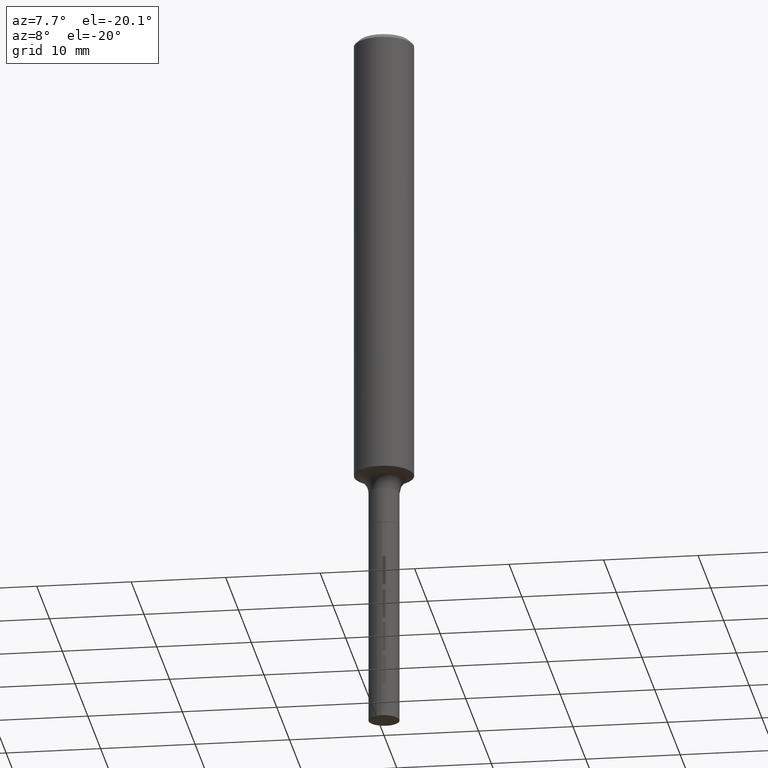
[diagram: clean part render]
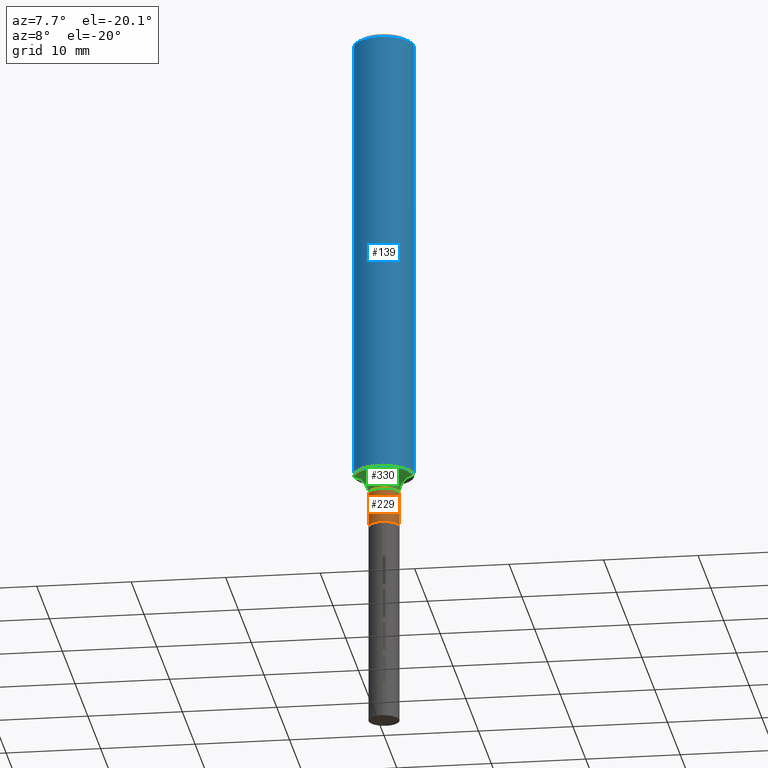
[diagram: same view with three faces highlighted in distinct colors, each labeled with its STEP entity id]
A machine part, auxiliary view with three faces highlighted in distinct colors.
Their STEP definitions:

[orange] entity #229 — the highlighted cylindrical surface (edge-blend (fillet) strip) has radius 1.632 mm, axis along (-0, 0, 1).
#24 = DIRECTION ( 'NONE',  ( -2.445468806185136597E-29, 3.491481338843145583E-15, 1.000000000000000000 ) ) ;
#29 = VERTEX_POINT ( 'NONE', #79 ) ;
#34 = ORIENTED_EDGE ( 'NONE', *, *, #176, .T. ) ;
#51 = CARTESIAN_POINT ( 'NONE',  ( 0.000000000000000000, 0.000000000000000000, 0.000000000000000000 ) ) ;
#73 = CARTESIAN_POINT ( 'NONE',  ( -0.06425000000000001543, -6.716200980726552309E-15, -2.128000000000000558 ) ) ;
#79 = CARTESIAN_POINT ( 'NONE',  ( 0.06424999999999998768, -7.364232439887960955E-15, -1.980699999999999905 ) ) ;
#101 = CYLINDRICAL_SURFACE ( 'NONE', #142, 0.06425000000000000155 ) ;
#120 = CIRCLE ( 'NONE', #152, 0.06424999999999998768 ) ;
#142 = AXIS2_PLACEMENT_3D ( 'NONE', #51, #203, #394 ) ;
#144 = EDGE_CURVE ( 'NONE', #464, #29, #120, .T. ) ;
#152 = AXIS2_PLACEMENT_3D ( 'NONE', #366, #440, #405 ) ;
#155 = LINE ( 'NONE', #306, #277 ) ;
#164 = FACE_OUTER_BOUND ( 'NONE', #243, .T. ) ;
#176 = EDGE_CURVE ( 'NONE', #223, #29, #293, .T. ) ;
#195 = DIRECTION ( 'NONE',  ( -2.445468806185136877E-29, 3.491481338843145188E-15, 1.000000000000000000 ) ) ;
#203 = DIRECTION ( 'NONE',  ( -2.445468806185136597E-29, 3.491481338843145583E-15, 1.000000000000000000 ) ) ;
#223 = VERTEX_POINT ( 'NONE', #444 ) ;
#224 = DIRECTION ( 'NONE',  ( 1.000000000000000000, -6.982962677686269077E-15, 0.000000000000000000 ) ) ;
#229 = ADVANCED_FACE ( 'NONE', ( #164 ), #101, .T. ) ;
#243 = EDGE_LOOP ( 'NONE', ( #284, #384, #34, #455 ) ) ;
#277 = VECTOR ( 'NONE', #195, 39.37007874015748143 ) ;
#282 = CARTESIAN_POINT ( 'NONE',  ( -0.06424999999999998768, -6.716200980726552309E-15, -1.980699999999999905 ) ) ;
#284 = ORIENTED_EDGE ( 'NONE', *, *, #449, .F. ) ;
#293 = LINE ( 'NONE', #438, #341 ) ;
#306 = CARTESIAN_POINT ( 'NONE',  ( -0.06425000000000000155, 4.565237077258643805E-16, -3.160415795488776479E-30 ) ) ;
#316 = AXIS2_PLACEMENT_3D ( 'NONE', #380, #24, #224 ) ;
#322 = EDGE_CURVE ( 'NONE', #466, #223, #411, .T. ) ;
#341 = VECTOR ( 'NONE', #441, 39.37007874015748143 ) ;
#366 = CARTESIAN_POINT ( 'NONE',  ( 4.843740064410899913E-29, -6.915577087846618761E-15, -1.980699999999999905 ) ) ;
#380 = CARTESIAN_POINT ( 'NONE',  ( 5.203957619561972077E-29, -7.429872289058215800E-15, -2.128000000000000558 ) ) ;
#384 = ORIENTED_EDGE ( 'NONE', *, *, #322, .T. ) ;
#394 = DIRECTION ( 'NONE',  ( 1.000000000000000000, -6.982962677686265922E-15, 4.876176775795935232E-29 ) ) ;
#405 = DIRECTION ( 'NONE',  ( 1.000000000000000000, -6.982962677686270655E-15, 0.000000000000000000 ) ) ;
#411 = CIRCLE ( 'NONE', #316, 0.06425000000000000155 ) ;
#438 = CARTESIAN_POINT ( 'NONE',  ( 0.06425000000000000155, -4.486553520413425888E-16, 3.132943578448888481E-30 ) ) ;
#440 = DIRECTION ( 'NONE',  ( -2.445468806185136597E-29, 3.491481338843145583E-15, 1.000000000000000000 ) ) ;
#441 = DIRECTION ( 'NONE',  ( -2.445468806185136877E-29, 3.491481338843145188E-15, 1.000000000000000000 ) ) ;
#444 = CARTESIAN_POINT ( 'NONE',  ( 0.06425000000000000155, -7.878527641099558784E-15, -2.128000000000000558 ) ) ;
#449 = EDGE_CURVE ( 'NONE', #466, #464, #155, .T. ) ;
#455 = ORIENTED_EDGE ( 'NONE', *, *, #144, .F. ) ;
#464 = VERTEX_POINT ( 'NONE', #282 ) ;
#466 = VERTEX_POINT ( 'NONE', #73 ) ;

[blue] entity #139 — the highlighted cylindrical surface (edge-blend (fillet) strip) has radius 3.175 mm, axis along (-0, 0, 1).
#6 = DIRECTION ( 'NONE',  ( -2.445468806185136597E-29, 3.491481338843145583E-15, 1.000000000000000000 ) ) ;
#9 = VERTEX_POINT ( 'NONE', #422 ) ;
#14 = AXIS2_PLACEMENT_3D ( 'NONE', #315, #6, #292 ) ;
#28 = CARTESIAN_POINT ( 'NONE',  ( 0.1250000000000000000, -9.383356098140928781E-16, -0.01875000000000014155 ) ) ;
#33 = CARTESIAN_POINT ( 'NONE',  ( 4.657716586061579389E-29, -6.649984862093984679E-15, -1.904631363230303576 ) ) ;
#62 = LINE ( 'NONE', #109, #429 ) ;
#63 = ORIENTED_EDGE ( 'NONE', *, *, #264, .T. ) ;
#64 = VECTOR ( 'NONE', #400, 39.37007874015748143 ) ;
#82 = EDGE_CURVE ( 'NONE', #9, #379, #246, .T. ) ;
#86 = VERTEX_POINT ( 'NONE', #251 ) ;
#89 = VERTEX_POINT ( 'NONE', #125 ) ;
#100 = CIRCLE ( 'NONE', #381, 0.1250000000000002498 ) ;
#109 = CARTESIAN_POINT ( 'NONE',  ( 0.1250000000000001110, -8.728703347107842263E-16, 6.095220969744926047E-30 ) ) ;
#125 = CARTESIAN_POINT ( 'NONE',  ( 0.1250000000000003331, -7.522855196804770385E-15, -1.904631363230303576 ) ) ;
#139 = ADVANCED_FACE ( 'NONE', ( #205 ), #408, .T. ) ;
#167 = DIRECTION ( 'NONE',  ( 1.000000000000000000, -6.982962677686267499E-15, 4.876176775795936353E-29 ) ) ;
#205 = FACE_OUTER_BOUND ( 'NONE', #313, .T. ) ;
#211 = EDGE_CURVE ( 'NONE', #86, #9, #321, .T. ) ;
#246 = CIRCLE ( 'NONE', #14, 0.1250000000000000000 ) ;
#249 = DIRECTION ( 'NONE',  ( -2.445468806185136597E-29, 3.491481338843145583E-15, 1.000000000000000000 ) ) ;
#251 = CARTESIAN_POINT ( 'NONE',  ( -0.1250000000000003331, -5.761806442393857869E-15, -1.904631363230303576 ) ) ;
#254 = DIRECTION ( 'NONE',  ( -2.445468806185136597E-29, 3.491481338843145583E-15, 1.000000000000000000 ) ) ;
#264 = EDGE_CURVE ( 'NONE', #89, #379, #62, .T. ) ;
#280 = AXIS2_PLACEMENT_3D ( 'NONE', #473, #249, #167 ) ;
#292 = DIRECTION ( 'NONE',  ( 1.000000000000000000, -6.982962677686266711E-15, 0.000000000000000000 ) ) ;
#294 = CARTESIAN_POINT ( 'NONE',  ( -0.1250000000000001110, 8.881784197001260212E-16, -6.148668862818637832E-30 ) ) ;
#313 = EDGE_LOOP ( 'NONE', ( #457, #390, #63, #448 ) ) ;
#315 = CARTESIAN_POINT ( 'NONE',  ( 4.585254011597165626E-31, -6.546527510330947764E-17, -0.01875000000000014155 ) ) ;
#321 = LINE ( 'NONE', #294, #64 ) ;
#323 = EDGE_CURVE ( 'NONE', #86, #89, #100, .T. ) ;
#373 = DIRECTION ( 'NONE',  ( -2.445468806185136877E-29, 3.491481338843145188E-15, 1.000000000000000000 ) ) ;
#379 = VERTEX_POINT ( 'NONE', #28 ) ;
#381 = AXIS2_PLACEMENT_3D ( 'NONE', #33, #254, #410 ) ;
#390 = ORIENTED_EDGE ( 'NONE', *, *, #323, .T. ) ;
#400 = DIRECTION ( 'NONE',  ( -2.445468806185136877E-29, 3.491481338843145188E-15, 1.000000000000000000 ) ) ;
#408 = CYLINDRICAL_SURFACE ( 'NONE', #280, 0.1250000000000001110 ) ;
#410 = DIRECTION ( 'NONE',  ( 1.000000000000000000, -6.982962677686264344E-15, 0.000000000000000000 ) ) ;
#422 = CARTESIAN_POINT ( 'NONE',  ( -0.1250000000000000000, -2.469546648898519313E-15, -0.01875000000000014155 ) ) ;
#429 = VECTOR ( 'NONE', #373, 39.37007874015748143 ) ;
#448 = ORIENTED_EDGE ( 'NONE', *, *, #82, .F. ) ;
#457 = ORIENTED_EDGE ( 'NONE', *, *, #211, .F. ) ;
#473 = CARTESIAN_POINT ( 'NONE',  ( 0.000000000000000000, 0.000000000000000000, 0.000000000000000000 ) ) ;

[green] entity #330 — the highlighted toroidal blend (fillet) surface has major radius 3.6131 mm and minor (blend) radius 1.9812 mm.
#13 = ORIENTED_EDGE ( 'NONE', *, *, #193, .F. ) ;
#18 = DIRECTION ( 'NONE',  ( -1.000000000000000000, 7.105427357601003436E-15, 0.000000000000000000 ) ) ;
#19 = DIRECTION ( 'NONE',  ( 1.000000000000000000, -6.982962677686263555E-15, 0.000000000000000000 ) ) ;
#23 = CARTESIAN_POINT ( 'NONE',  ( 0.1422499999999999876, -7.908903528747489001E-15, -1.980699999999999905 ) ) ;
#25 = AXIS2_PLACEMENT_3D ( 'NONE', #340, #295, #103 ) ;
#29 = VERTEX_POINT ( 'NONE', #79 ) ;
#33 = CARTESIAN_POINT ( 'NONE',  ( 4.657716586061579389E-29, -6.649984862093984679E-15, -1.904631363230303576 ) ) ;
#48 = ORIENTED_EDGE ( 'NONE', *, *, #323, .F. ) ;
#59 = AXIS2_PLACEMENT_3D ( 'NONE', #23, #403, #19 ) ;
#79 = CARTESIAN_POINT ( 'NONE',  ( 0.06424999999999998768, -7.364232439887960955E-15, -1.980699999999999905 ) ) ;
#86 = VERTEX_POINT ( 'NONE', #251 ) ;
#89 = VERTEX_POINT ( 'NONE', #125 ) ;
#92 = CIRCLE ( 'NONE', #239, 0.07800000000000008316 ) ;
#96 = EDGE_CURVE ( 'NONE', #86, #464, #92, .T. ) ;
#98 = DIRECTION ( 'NONE',  ( 7.105427357601001859E-15, 1.000000000000000000, -3.491481338843145583E-15 ) ) ;
#100 = CIRCLE ( 'NONE', #381, 0.1250000000000002498 ) ;
#103 = DIRECTION ( 'NONE',  ( 1.000000000000000000, -6.982962677686268288E-15, 4.883557194083113462E-29 ) ) ;
#120 = CIRCLE ( 'NONE', #152, 0.06424999999999998768 ) ;
#125 = CARTESIAN_POINT ( 'NONE',  ( 0.1250000000000003331, -7.522855196804770385E-15, -1.904631363230303576 ) ) ;
#144 = EDGE_CURVE ( 'NONE', #464, #29, #120, .T. ) ;
#152 = AXIS2_PLACEMENT_3D ( 'NONE', #366, #440, #405 ) ;
#193 = EDGE_CURVE ( 'NONE', #89, #29, #406, .T. ) ;
#217 = ORIENTED_EDGE ( 'NONE', *, *, #96, .T. ) ;
#239 = AXIS2_PLACEMENT_3D ( 'NONE', #327, #98, #18 ) ;
#251 = CARTESIAN_POINT ( 'NONE',  ( -0.1250000000000003331, -5.761806442393857869E-15, -1.904631363230303576 ) ) ;
#254 = DIRECTION ( 'NONE',  ( -2.445468806185136597E-29, 3.491481338843145583E-15, 1.000000000000000000 ) ) ;
#282 = CARTESIAN_POINT ( 'NONE',  ( -0.06424999999999998768, -6.716200980726552309E-15, -1.980699999999999905 ) ) ;
#295 = DIRECTION ( 'NONE',  ( -2.445468806185136597E-29, 3.491481338843145583E-15, 1.000000000000000000 ) ) ;
#323 = EDGE_CURVE ( 'NONE', #86, #89, #100, .T. ) ;
#327 = CARTESIAN_POINT ( 'NONE',  ( -0.1422499999999999876, -5.904830046227876335E-15, -1.980699999999999905 ) ) ;
#330 = ADVANCED_FACE ( 'NONE', ( #452 ), #395, .F. ) ;
#340 = CARTESIAN_POINT ( 'NONE',  ( 4.843740064410899913E-29, -6.915577087846618761E-15, -1.980699999999999905 ) ) ;
#366 = CARTESIAN_POINT ( 'NONE',  ( 4.843740064410899913E-29, -6.915577087846618761E-15, -1.980699999999999905 ) ) ;
#374 = EDGE_LOOP ( 'NONE', ( #48, #217, #453, #13 ) ) ;
#381 = AXIS2_PLACEMENT_3D ( 'NONE', #33, #254, #410 ) ;
#395 = TOROIDAL_SURFACE ( 'NONE', #25, 0.1422499999999999876, 0.07800000000000006928 ) ;
#403 = DIRECTION ( 'NONE',  ( -6.982962677686266711E-15, -1.000000000000000000, 3.491481338843145583E-15 ) ) ;
#405 = DIRECTION ( 'NONE',  ( 1.000000000000000000, -6.982962677686270655E-15, 0.000000000000000000 ) ) ;
#406 = CIRCLE ( 'NONE', #59, 0.07800000000000008316 ) ;
#410 = DIRECTION ( 'NONE',  ( 1.000000000000000000, -6.982962677686264344E-15, 0.000000000000000000 ) ) ;
#440 = DIRECTION ( 'NONE',  ( -2.445468806185136597E-29, 3.491481338843145583E-15, 1.000000000000000000 ) ) ;
#452 = FACE_OUTER_BOUND ( 'NONE', #374, .T. ) ;
#453 = ORIENTED_EDGE ( 'NONE', *, *, #144, .T. ) ;
#464 = VERTEX_POINT ( 'NONE', #282 ) ;